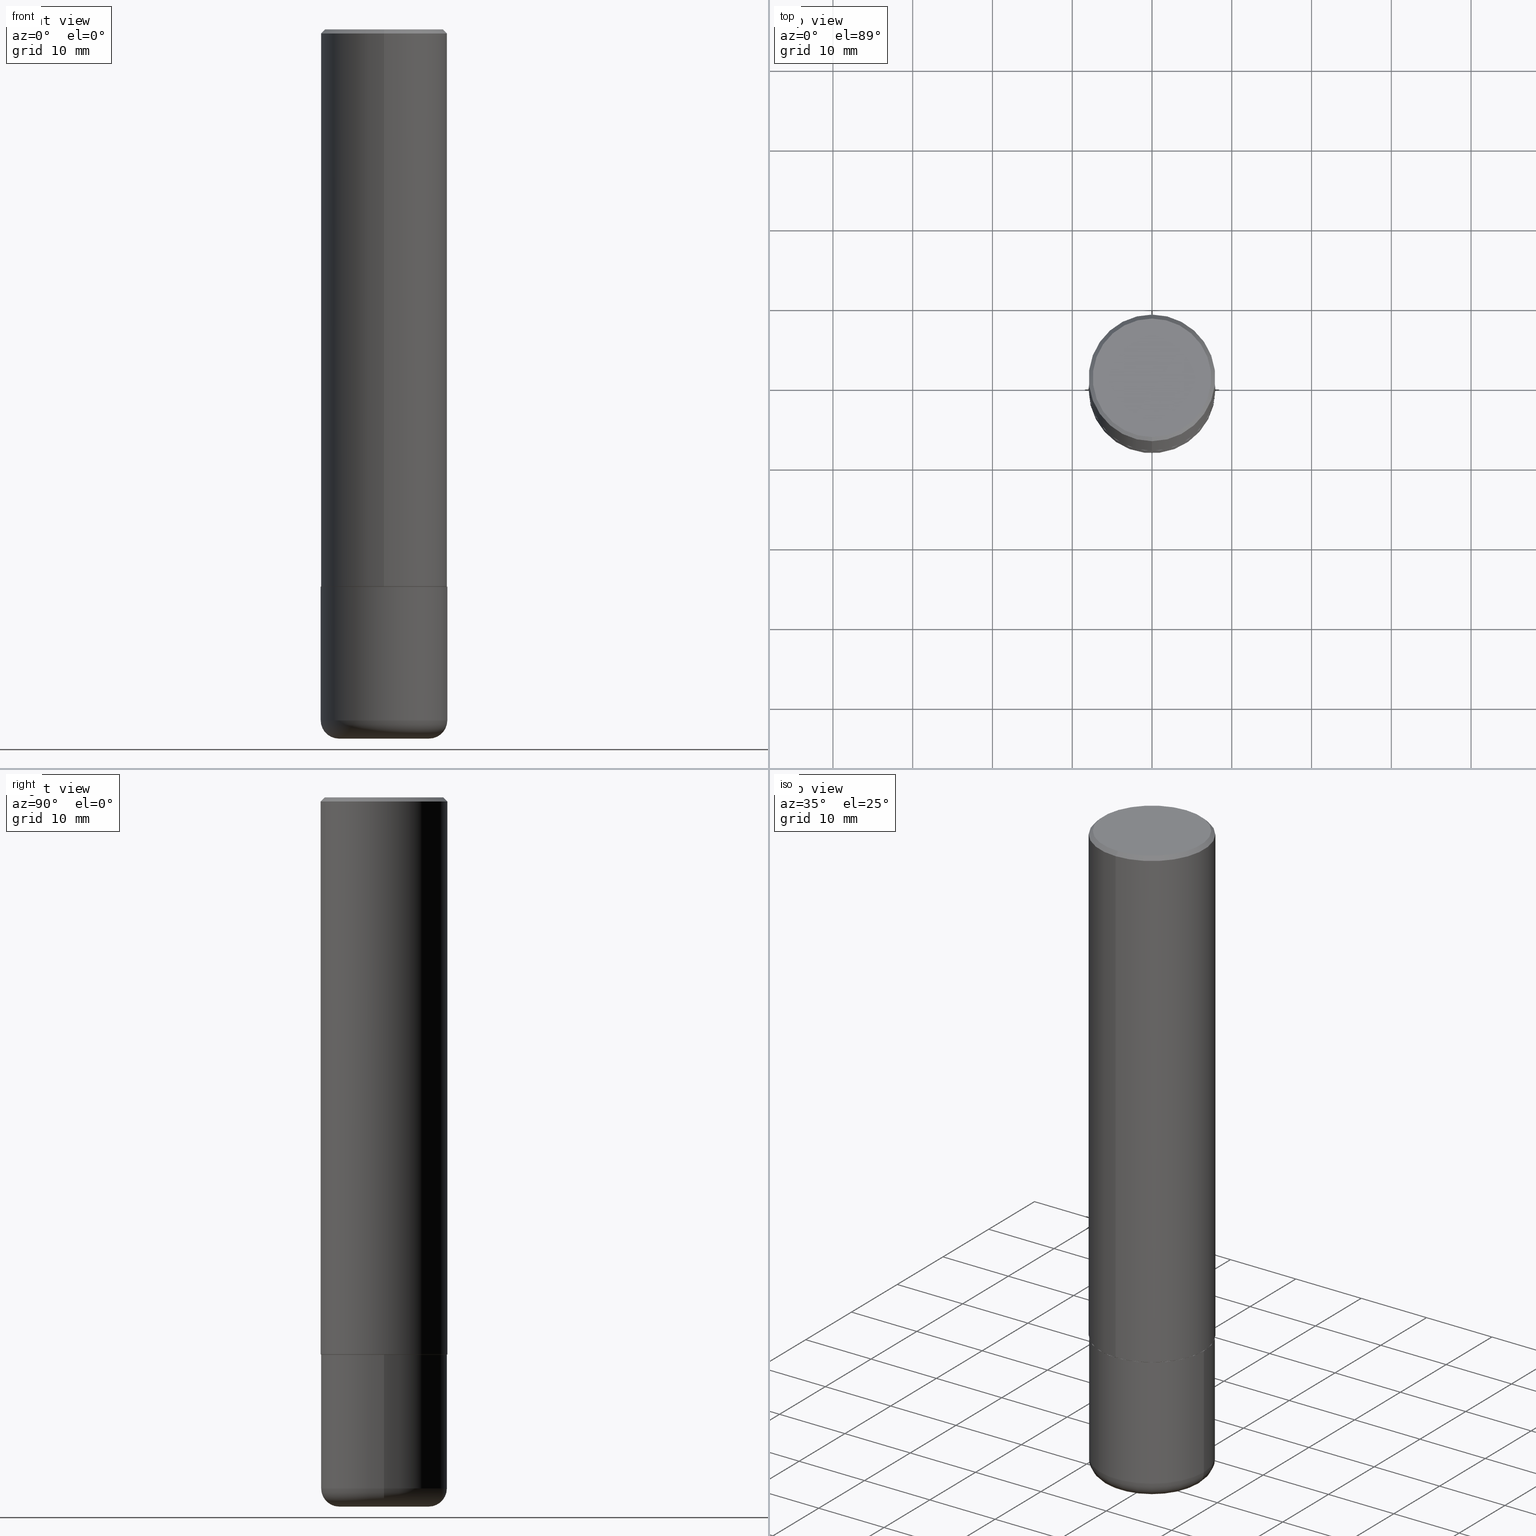
[diagram: canonical four-view strip — front | top / right | iso, engineering-drawing reading convention]
A machine part, canonical four-view strip (front | top / right | iso — engineering-drawing reading convention). The complete STEP part file that produces these views, byte-faithful:
ISO-10303-21;
HEADER;
FILE_DESCRIPTION (( 'STEP AP203' ),
    '1' );
FILE_NAME ('38626.STEP',
    '2024-03-03T09:10:07',
    ( '' ),
    ( '' ),
    'SwSTEP 2.0',
    'SolidWorks 2023',
    '' );
FILE_SCHEMA (( 'CONFIG_CONTROL_DESIGN' ));
ENDSEC;

DATA;
#1 = ADVANCED_FACE ( 'NONE', ( #261 ), #129, .T. ) ;
#2 = CYLINDRICAL_SURFACE ( 'NONE', #130, 0.3125000000000001665 ) ;
#3 = PRODUCT_RELATED_PRODUCT_CATEGORY ( 'detail', '', ( #117 ) ) ;
#4 = VERTEX_POINT ( 'NONE', #186 ) ;
#5 = EDGE_CURVE ( 'NONE', #210, #52, #221, .T. ) ;
#6 = DIRECTION ( 'NONE',  ( -2.445468806185136877E-29, 3.491481338843145188E-15, 1.000000000000000000 ) ) ;
#7 = AXIS2_PLACEMENT_3D ( 'NONE', #414, #28, #351 ) ;
#8 = DATE_AND_TIME ( #10, #123 ) ;
#9 = DIRECTION ( 'NONE',  ( -2.445171408279705303E-29, 3.491907229570560770E-15, 1.000000000000000000 ) ) ;
#10 = CALENDAR_DATE ( 2024, 3, 3 ) ;
#11 = CARTESIAN_POINT ( 'NONE',  ( -2.182175836776959136E-15, -0.3125000000000001665, 1.091221009240800684E-15 ) ) ;
#12 = CARTESIAN_POINT ( 'NONE',  ( 2.112346210000096627E-15, 0.2925000000000002043, -1.145045153824532785E-15 ) ) ;
#13 = EDGE_CURVE ( 'NONE', #24, #306, #40, .T. ) ;
#14 = EDGE_LOOP ( 'NONE', ( #341, #275 ) ) ;
#15 = PERSON_AND_ORGANIZATION_ROLE ( 'classification_officer' ) ;
#16 =( GEOMETRIC_REPRESENTATION_CONTEXT ( 3 ) GLOBAL_UNCERTAINTY_ASSIGNED_CONTEXT ( ( #50 ) ) GLOBAL_UNIT_ASSIGNED_CONTEXT ( ( #34, #157, #418 ) ) REPRESENTATION_CONTEXT ( 'NONE', 'WORKASPACE' ) );
#17 = VERTEX_POINT ( 'NONE', #153 ) ;
#18 = APPROVAL_DATE_TIME ( #8, #278 ) ;
#19 = ADVANCED_FACE ( 'NONE', ( #285 ), #349, .T. ) ;
#20 = ORIENTED_EDGE ( 'NONE', *, *, #5, .F. ) ;
#21 = EDGE_LOOP ( 'NONE', ( #203, #313 ) ) ;
#22 = CIRCLE ( 'NONE', #47, 0.3125000000000002776 ) ;
#23 = VECTOR ( 'NONE', #26, 39.37007874015748143 ) ;
#24 = VERTEX_POINT ( 'NONE', #25 ) ;
#25 = CARTESIAN_POINT ( 'NONE',  ( 0.3125000000000000000, -1.178374951859560978E-14, -2.750000000000000000 ) ) ;
#26 = DIRECTION ( 'NONE',  ( -4.937700262165728178E-15, -0.7071067811867141062, 0.7071067811863809283 ) ) ;
#27 = DIRECTION ( 'NONE',  ( -2.445468806185136597E-29, 3.491481338843145583E-15, 1.000000000000000000 ) ) ;
#28 = DIRECTION ( 'NONE',  ( 2.445171408279705022E-29, -3.491907229570560770E-15, -1.000000000000000000 ) ) ;
#29 = CARTESIAN_POINT ( 'NONE',  ( 4.890342816559434953E-31, -6.983814459141154574E-17, -0.02000000000000009756 ) ) ;
#30 = ADVANCED_FACE ( 'NONE', ( #92 ), #58, .T. ) ;
#31 = CARTESIAN_POINT ( 'NONE',  ( 2.213340621892779126E-15, 0.3114999999999903957, -2.750000000000000888 ) ) ;
#32 = DIRECTION ( 'NONE',  ( 1.000000000000000000, 0.000000000000000000, 0.000000000000000000 ) ) ;
#33 = LINE ( 'NONE', #11, #141 ) ;
#34 =( CONVERSION_BASED_UNIT ( 'INCH', #288 ) LENGTH_UNIT ( ) NAMED_UNIT ( #39 ) );
#35 = CARTESIAN_POINT ( 'NONE',  ( -2.075300644325888676E-15, -0.2925000000000002043, 8.977205754742468235E-16 ) ) ;
#36 = DIRECTION ( 'NONE',  ( 1.000000000000000000, -6.982962677686273810E-15, 0.000000000000000000 ) ) ;
#37 = CARTESIAN_POINT ( 'NONE',  ( 2.182175836776959136E-15, 0.3125000000000000000, -0.02000000000000119044 ) ) ;
#38 = DIRECTION ( 'NONE',  ( -6.982962677686266711E-15, -1.000000000000000000, 3.496765431890256131E-15 ) ) ;
#39 = DIMENSIONAL_EXPONENTS ( 1.000000000000000000, 0.000000000000000000, 0.000000000000000000, 0.000000000000000000, 0.000000000000000000, 0.000000000000000000, 0.000000000000000000 ) ;
#40 = CIRCLE ( 'NONE', #271, 0.3125000000000000000 ) ;
#41 = ORIENTED_EDGE ( 'NONE', *, *, #5, .T. ) ;
#42 = VECTOR ( 'NONE', #274, 39.37007874015748143 ) ;
#43 = ORIENTED_EDGE ( 'NONE', *, *, #292, .T. ) ;
#44 = COORDINATED_UNIVERSAL_TIME_OFFSET ( 5, 0, .BEHIND. ) ;
#45 = ORIENTED_EDGE ( 'NONE', *, *, #179, .F. ) ;
#46 = EDGE_CURVE ( 'NONE', #248, #250, #254, .T. ) ;
#47 = AXIS2_PLACEMENT_3D ( 'NONE', #415, #62, #122 ) ;
#48 = LOCAL_TIME ( 4, 10, 7.000000000000000000, #209 ) ;
#49 = EDGE_LOOP ( 'NONE', ( #45, #280, #243, #180 ) ) ;
#50 = UNCERTAINTY_MEASURE_WITH_UNIT (LENGTH_MEASURE( 1.000000000000000082E-05 ), #34, 'distance_accuracy_value', 'NONE');
#51 = ORIENTED_EDGE ( 'NONE', *, *, #169, .T. ) ;
#52 = VERTEX_POINT ( 'NONE', #295 ) ;
#53 = AXIS2_PLACEMENT_3D ( 'NONE', #358, #27, #384 ) ;
#54 = DIRECTION ( 'NONE',  ( 7.105427357601001859E-15, 1.000000000000000000, -3.491481338843145583E-15 ) ) ;
#55 =( LENGTH_UNIT ( ) NAMED_UNIT ( * ) SI_UNIT ( $, .METRE. ) );
#56 = DIRECTION ( 'NONE',  ( -2.445171408279705303E-29, 3.491907229570560770E-15, 1.000000000000000000 ) ) ;
#57 = LINE ( 'NONE', #359, #323 ) ;
#58 = PLANE ( 'NONE',  #322 ) ;
#59 = CARTESIAN_POINT ( 'NONE',  ( -0.2225000000000000033, -1.016236620754480236E-14, -3.499999999999999112 ) ) ;
#60 = CONICAL_SURFACE ( 'NONE', #76, 0.3125000000000000555, 0.7853981633974452814 ) ;
#61 = CIRCLE ( 'NONE', #118, 0.08999999999999964972 ) ;
#62 = DIRECTION ( 'NONE',  ( -2.445171408279705303E-29, 3.491907229570560770E-15, 1.000000000000000000 ) ) ;
#63 = DIRECTION ( 'NONE',  ( 0.000000000000000000, 0.000000000000000000, 1.000000000000000000 ) ) ;
#64 = DIRECTION ( 'NONE',  ( 5.024295867789263036E-15, 0.7071067811867189912, 0.7071067811863760433 ) ) ;
#65 = CARTESIAN_POINT ( 'NONE',  ( 6.721776201360911132E-29, -9.599252974089470899E-15, -2.749000000000000110 ) ) ;
#66 = ADVANCED_FACE ( 'NONE', ( #289 ), #247, .T. ) ;
#67 = DIRECTION ( 'NONE',  ( -6.982962677686265922E-15, -1.000000000000000000, 3.507991003100177457E-15 ) ) ;
#68 = CARTESIAN_POINT ( 'NONE',  ( 8.339048629091315302E-29, -1.190595136545512608E-14, -3.410000000000000142 ) ) ;
#69 = PRODUCT_DEFINITION_FORMATION_WITH_SPECIFIED_SOURCE ( 'ANY', '', #117, .NOT_KNOWN. ) ;
#70 = PERSON_AND_ORGANIZATION ( #242, #132 ) ;
#71 = DIRECTION ( 'NONE',  ( -2.445468806185136597E-29, 3.491481338843145583E-15, 1.000000000000000000 ) ) ;
#72 = EDGE_CURVE ( 'NONE', #277, #205, #22, .T. ) ;
#73 = DIRECTION ( 'NONE',  ( -2.445171408279705303E-29, 3.491907229570560770E-15, 1.000000000000000000 ) ) ;
#74 = ORIENTED_EDGE ( 'NONE', *, *, #142, .F. ) ;
#75 = PRODUCT_DEFINITION ( 'UNKNOWN', '', #69, #181 ) ;
#76 = AXIS2_PLACEMENT_3D ( 'NONE', #29, #293, #191 ) ;
#77 = AXIS2_PLACEMENT_3D ( 'NONE', #224, #63, #32 ) ;
#78 = ORIENTED_EDGE ( 'NONE', *, *, #307, .F. ) ;
#79 = EDGE_LOOP ( 'NONE', ( #402, #334, #41, #375 ) ) ;
#80 = ORIENTED_EDGE ( 'NONE', *, *, #292, .F. ) ;
#81 = SECURITY_CLASSIFICATION_LEVEL ( 'unclassified' ) ;
#82 = AXIS2_PLACEMENT_3D ( 'NONE', #159, #260, #93 ) ;
#83 = ORIENTED_EDGE ( 'NONE', *, *, #13, .T. ) ;
#84 = EDGE_CURVE ( 'NONE', #17, #344, #103, .T. ) ;
#85 = ORIENTED_EDGE ( 'NONE', *, *, #213, .T. ) ;
#86 = APPROVAL ( #343, 'UNSPECIFIED' ) ;
#87 = DIRECTION ( 'NONE',  ( -2.445468806185136597E-29, 3.491481338843145583E-15, 1.000000000000000000 ) ) ;
#88 = CIRCLE ( 'NONE', #196, 0.3125000000000000000 ) ;
#89 = CARTESIAN_POINT ( 'NONE',  ( 4.890342816559434953E-31, -6.983814459141154574E-17, -0.02000000000000009756 ) ) ;
#90 = DIRECTION ( 'NONE',  ( -2.445171408279705303E-29, 3.491907229570560770E-15, 1.000000000000000000 ) ) ;
#91 = CARTESIAN_POINT ( 'NONE',  ( 6.725039217009124520E-29, -9.601573681818649859E-15, -2.750000000000000000 ) ) ;
#92 = FACE_OUTER_BOUND ( 'NONE', #21, .T. ) ;
#93 = DIRECTION ( 'NONE',  ( -6.982962677686265922E-15, -1.000000000000000000, 3.507991003100177457E-15 ) ) ;
#94 = DIRECTION ( 'NONE',  ( 1.000000000000000000, -6.982962677686269077E-15, 0.000000000000000000 ) ) ;
#95 = AXIS2_PLACEMENT_3D ( 'NONE', #68, #71, #332 ) ;
#96 = VECTOR ( 'NONE', #6, 39.37007874015748143 ) ;
#97 = LINE ( 'NONE', #31, #116 ) ;
#98 = PLANE ( 'NONE',  #335 ) ;
#99 = CARTESIAN_POINT ( 'NONE',  ( 6.724221372769189582E-29, -9.602744881319041132E-15, -2.750000000000000000 ) ) ;
#100 = PERSON_AND_ORGANIZATION_ROLE ( 'creator' ) ;
#101 = CARTESIAN_POINT ( 'NONE',  ( 6.724221372769189582E-29, -9.602744881319041132E-15, -2.750000000000000000 ) ) ;
#102 = PERSON_AND_ORGANIZATION ( #242, #132 ) ;
#103 = CIRCLE ( 'NONE', #262, 0.3114999999999999991 ) ;
#104 = ADVANCED_FACE ( 'NONE', ( #321 ), #60, .T. ) ;
#105 = DIRECTION ( 'NONE',  ( -2.445171408279705022E-29, 3.491907229570560770E-15, 1.000000000000000000 ) ) ;
#106 = CIRCLE ( 'NONE', #380, 0.3125000000000000555 ) ;
#107 = ADVANCED_FACE ( 'NONE', ( #125 ), #2, .T. ) ;
#108 = ORIENTED_EDGE ( 'NONE', *, *, #245, .T. ) ;
#109 = ORIENTED_EDGE ( 'NONE', *, *, #263, .F. ) ;
#110 = LOCAL_TIME ( 4, 10, 7.000000000000000000, #44 ) ;
#111 = EDGE_LOOP ( 'NONE', ( #279, #336 ) ) ;
#112 = PERSON_AND_ORGANIZATION_ROLE ( 'creator' ) ;
#113 = EDGE_LOOP ( 'NONE', ( #109, #43, #148, #182 ) ) ;
#114 = DATE_AND_TIME ( #233, #48 ) ;
#115 = VERTEX_POINT ( 'NONE', #257 ) ;
#116 = VECTOR ( 'NONE', #64, 39.37007874015748143 ) ;
#117 = PRODUCT ( '38626', '38626', '', ( #296 ) ) ;
#118 = AXIS2_PLACEMENT_3D ( 'NONE', #401, #360, #36 ) ;
#119 = ORIENTED_EDGE ( 'NONE', *, *, #144, .T. ) ;
#120 = DIRECTION ( 'NONE',  ( -2.445171408279705303E-29, 3.491907229570560770E-15, 1.000000000000000000 ) ) ;
#121 = PLANE ( 'NONE',  #7 ) ;
#122 = DIRECTION ( 'NONE',  ( -6.982962677686265922E-15, -1.000000000000000000, 3.496765431890253764E-15 ) ) ;
#123 = LOCAL_TIME ( 4, 10, 7.000000000000000000, #229 ) ;
#124 = FACE_OUTER_BOUND ( 'NONE', #151, .T. ) ;
#125 = FACE_OUTER_BOUND ( 'NONE', #408, .T. ) ;
#126 = DIRECTION ( 'NONE',  ( -1.000000000000000000, 6.982962677686265922E-15, -4.876176775795935793E-29 ) ) ;
#127 = CARTESIAN_POINT ( 'NONE',  ( -0.2225000000000000033, -1.032499377838890215E-14, -3.410000000000000142 ) ) ;
#128 = APPLICATION_PROTOCOL_DEFINITION ( 'international standard', 'config_control_design', 1994, #342 ) ;
#129 = CYLINDRICAL_SURFACE ( 'NONE', #386, 0.3125000000000001665 ) ;
#130 = AXIS2_PLACEMENT_3D ( 'NONE', #325, #251, #317 ) ;
#131 = CARTESIAN_POINT ( 'NONE',  ( 0.3125000000000000000, -2.182175836776958347E-15, 1.523805242436230075E-29 ) ) ;
#132 = ORGANIZATION ( 'UNSPECIFIED', 'UNSPECIFIED', '' ) ;
#133 = CARTESIAN_POINT ( 'NONE',  ( 2.220446049250348185E-15, 0.3124999999999906741, -2.749000000000000998 ) ) ;
#134 = ADVANCED_FACE ( 'NONE', ( #390 ), #347, .T. ) ;
#135 = DATE_TIME_ROLE ( 'classification_date' ) ;
#136 = LINE ( 'NONE', #367, #42 ) ;
#137 = PERSON_AND_ORGANIZATION ( #242, #132 ) ;
#138 = CARTESIAN_POINT ( 'NONE',  ( 3.023754937734766130E-45, -4.318172415959271886E-31, -1.236622891751430301E-16 ) ) ;
#139 = CC_DESIGN_PERSON_AND_ORGANIZATION_ASSIGNMENT ( #70, #112, ( #69 ) ) ;
#140 = CARTESIAN_POINT ( 'NONE',  ( 8.339048629091315302E-29, -1.190595136545512608E-14, -3.410000000000000142 ) ) ;
#141 = VECTOR ( 'NONE', #270, 39.37007874015748143 ) ;
#142 = EDGE_CURVE ( 'NONE', #344, #277, #97, .T. ) ;
#143 = ORIENTED_EDGE ( 'NONE', *, *, #189, .F. ) ;
#144 = EDGE_CURVE ( 'NONE', #378, #310, #239, .T. ) ;
#145 = ORIENTED_EDGE ( 'NONE', *, *, #13, .F. ) ;
#146 = CIRCLE ( 'NONE', #183, 0.2225000000000000033 ) ;
#147 = PERSON_AND_ORGANIZATION ( #242, #132 ) ;
#148 = ORIENTED_EDGE ( 'NONE', *, *, #307, .T. ) ;
#149 = COORDINATED_UNIVERSAL_TIME_OFFSET ( 5, 0, .BEHIND. ) ;
#150 = ORIENTED_EDGE ( 'NONE', *, *, #223, .F. ) ;
#151 = EDGE_LOOP ( 'NONE', ( #316, #338, #283, #373 ) ) ;
#152 = CIRCLE ( 'NONE', #202, 0.3125000000000002776 ) ;
#153 = CARTESIAN_POINT ( 'NONE',  ( -2.175192874099204491E-15, -0.3115000000000096581, -2.749999999999998668 ) ) ;
#154 = ADVANCED_FACE ( 'NONE', ( #197 ), #163, .F. ) ;
#155 = DIRECTION ( 'NONE',  ( -2.445171408279705303E-29, 3.491907229570560770E-15, 1.000000000000000000 ) ) ;
#156 = CARTESIAN_POINT ( 'NONE',  ( 3.023754937734766130E-45, -4.318172415959271886E-31, -1.236622891751430301E-16 ) ) ;
#157 =( NAMED_UNIT ( * ) PLANE_ANGLE_UNIT ( ) SI_UNIT ( $, .RADIAN. ) );
#158 = CARTESIAN_POINT ( 'NONE',  ( 6.724221372769189582E-29, -9.602744881319041132E-15, -2.750000000000000000 ) ) ;
#159 = CARTESIAN_POINT ( 'NONE',  ( 6.724221372769189582E-29, -9.602744881319041132E-15, -2.750000000000000000 ) ) ;
#160 = ADVANCED_FACE ( 'NONE', ( #195 ), #249, .T. ) ;
#161 = CARTESIAN_POINT ( 'NONE',  ( 0.000000000000000000, 0.000000000000000000, 0.000000000000000000 ) ) ;
#162 = DIRECTION ( 'NONE',  ( 2.445171408279705303E-29, -3.491907229570560770E-15, -1.000000000000000000 ) ) ;
#163 = PLANE ( 'NONE',  #166 ) ;
#164 = CLOSED_SHELL ( 'NONE', ( #19, #294, #356, #134, #160, #30 ) ) ;
#165 = CALENDAR_DATE ( 2024, 3, 3 ) ;
#166 = AXIS2_PLACEMENT_3D ( 'NONE', #101, #105, #396 ) ;
#167 = CARTESIAN_POINT ( 'NONE',  ( 8.339048629091315302E-29, -1.190595136545512608E-14, -3.410000000000000142 ) ) ;
#168 = DIRECTION ( 'NONE',  ( -2.445468806185136597E-29, 3.491481338843145583E-15, 1.000000000000000000 ) ) ;
#169 = EDGE_CURVE ( 'NONE', #248, #52, #362, .T. ) ;
#170 = DIRECTION ( 'NONE',  ( 1.000000000000000000, -6.982962677686269077E-15, 0.000000000000000000 ) ) ;
#171 = PRODUCT_DEFINITION_SHAPE ( 'NONE', 'NONE',  #75 ) ;
#172 = AXIS2_PLACEMENT_3D ( 'NONE', #200, #168, #326 ) ;
#173 = ORIENTED_EDGE ( 'NONE', *, *, #144, .F. ) ;
#174 = DATE_AND_TIME ( #165, #110 ) ;
#175 = ORIENTED_EDGE ( 'NONE', *, *, #377, .T. ) ;
#176 = SECURITY_CLASSIFICATION ( '', '', #81 ) ;
#177 = APPROVAL_STATUS ( 'not_yet_approved' ) ;
#178 = ORIENTED_EDGE ( 'NONE', *, *, #263, .T. ) ;
#179 = EDGE_CURVE ( 'NONE', #277, #52, #136, .T. ) ;
#180 = ORIENTED_EDGE ( 'NONE', *, *, #245, .F. ) ;
#181 = DESIGN_CONTEXT ( 'detailed design', #403, 'design' ) ;
#182 = ORIENTED_EDGE ( 'NONE', *, *, #350, .F. ) ;
#183 = AXIS2_PLACEMENT_3D ( 'NONE', #357, #320, #194 ) ;
#184 = ORIENTED_EDGE ( 'NONE', *, *, #411, .F. ) ;
#185 = CARTESIAN_POINT ( 'NONE',  ( 6.725039217009124520E-29, -9.601573681818649859E-15, -2.750000000000000000 ) ) ;
#186 = CARTESIAN_POINT ( 'NONE',  ( 0.3124999999999998890, -1.408812720223208442E-14, -3.410000000000000142 ) ) ;
#187 = CARTESIAN_POINT ( 'NONE',  ( -0.3124999999999998890, -9.685505316204812997E-15, -3.410000000000000142 ) ) ;
#188 = DIRECTION ( 'NONE',  ( -6.982962677686266711E-15, -1.000000000000000000, 3.491907229570560770E-15 ) ) ;
#189 = EDGE_CURVE ( 'NONE', #115, #4, #61, .T. ) ;
#190 = LOCAL_TIME ( 4, 10, 7.000000000000000000, #244 ) ;
#191 = DIRECTION ( 'NONE',  ( 6.982962677686266711E-15, 1.000000000000000000, -3.496765431890256131E-15 ) ) ;
#192 = DIRECTION ( 'NONE',  ( -6.982962677686265922E-15, -1.000000000000000000, 3.496765431890253764E-15 ) ) ;
#193 = ORIENTED_EDGE ( 'NONE', *, *, #282, .T. ) ;
#194 = DIRECTION ( 'NONE',  ( 1.000000000000000000, -6.982962677686269077E-15, 0.000000000000000000 ) ) ;
#195 = FACE_OUTER_BOUND ( 'NONE', #383, .T. ) ;
#196 = AXIS2_PLACEMENT_3D ( 'NONE', #185, #264, #318 ) ;
#197 = FACE_OUTER_BOUND ( 'NONE', #14, .T. ) ;
#198 = APPROVAL_ROLE ( '' ) ;
#199 = CARTESIAN_POINT ( 'NONE',  ( -2.143905624303603219E-15, -0.3125000000000001665, -0.01999999999999900469 ) ) ;
#200 = CARTESIAN_POINT ( 'NONE',  ( 8.339048629091315302E-29, -1.190595136545512608E-14, -3.410000000000000142 ) ) ;
#201 = AXIS2_PLACEMENT_3D ( 'NONE', #156, #225, #188 ) ;
#202 = AXIS2_PLACEMENT_3D ( 'NONE', #65, #258, #192 ) ;
#203 = ORIENTED_EDGE ( 'NONE', *, *, #314, .F. ) ;
#204 = APPLICATION_PROTOCOL_DEFINITION ( 'international standard', 'config_control_design', 1994, #403 ) ;
#205 = VERTEX_POINT ( 'NONE', #303 ) ;
#206 = PERSON_AND_ORGANIZATION ( #242, #132 ) ;
#207 = ORIENTED_EDGE ( 'NONE', *, *, #211, .T. ) ;
#208 = CC_DESIGN_DATE_AND_TIME_ASSIGNMENT ( #407, #135, ( #176 ) ) ;
#209 = COORDINATED_UNIVERSAL_TIME_OFFSET ( 5, 0, .BEHIND. ) ;
#210 = VERTEX_POINT ( 'NONE', #199 ) ;
#211 = EDGE_CURVE ( 'NONE', #344, #17, #276, .T. ) ;
#212 = ORIENTED_EDGE ( 'NONE', *, *, #382, .T. ) ;
#213 = EDGE_CURVE ( 'NONE', #4, #310, #355, .T. ) ;
#214 = DIRECTION ( 'NONE',  ( -6.982962677686265922E-15, -1.000000000000000000, 3.507991003100177457E-15 ) ) ;
#215 = AXIS2_PLACEMENT_3D ( 'NONE', #89, #162, #216 ) ;
#216 = DIRECTION ( 'NONE',  ( 6.982962677686266711E-15, 1.000000000000000000, -3.496765431890256131E-15 ) ) ;
#217 = CARTESIAN_POINT ( 'NONE',  ( 0.000000000000000000, 0.000000000000000000, 0.000000000000000000 ) ) ;
#218 = DIRECTION ( 'NONE',  ( -6.982962677686266711E-15, -1.000000000000000000, 3.496765431890256131E-15 ) ) ;
#219 = CARTESIAN_POINT ( 'NONE',  ( 1.456070253248337008E-28, -3.625606728355578380E-15, -3.499999999999999112 ) ) ;
#220 = CC_DESIGN_PERSON_AND_ORGANIZATION_ASSIGNMENT ( #266, #15, ( #176 ) ) ;
#221 = CIRCLE ( 'NONE', #290, 0.3125000000000000555 ) ;
#222 = AXIS2_PLACEMENT_3D ( 'NONE', #399, #235, #365 ) ;
#223 = EDGE_CURVE ( 'NONE', #205, #210, #33, .T. ) ;
#224 = CARTESIAN_POINT ( 'NONE',  ( 0.000000000000000000, 0.000000000000000000, 0.000000000000000000 ) ) ;
#225 = DIRECTION ( 'NONE',  ( -2.445171408279705303E-29, 3.491907229570560770E-15, 1.000000000000000000 ) ) ;
#226 = EDGE_CURVE ( 'NONE', #250, #248, #369, .T. ) ;
#227 = FACE_OUTER_BOUND ( 'NONE', #406, .T. ) ;
#228 = DIRECTION ( 'NONE',  ( -2.445468806185136597E-29, 3.491481338843145583E-15, 1.000000000000000000 ) ) ;
#229 = COORDINATED_UNIVERSAL_TIME_OFFSET ( 5, 0, .BEHIND. ) ;
#230 = CC_DESIGN_PERSON_AND_ORGANIZATION_ASSIGNMENT ( #102, #100, ( #75 ) ) ;
#231 = CARTESIAN_POINT ( 'NONE',  ( -0.3125000000000000000, -8.533316474386574888E-15, -2.750000000000000000 ) ) ;
#232 = AXIS2_PLACEMENT_3D ( 'NONE', #158, #155, #214 ) ;
#233 = CALENDAR_DATE ( 2024, 3, 3 ) ;
#234 = APPROVAL_PERSON_ORGANIZATION ( #147, #413, #272 ) ;
#235 = DIRECTION ( 'NONE',  ( -2.445468806185136597E-29, 3.491481338843145583E-15, 1.000000000000000000 ) ) ;
#236 = DIRECTION ( 'NONE',  ( 4.937700262164532265E-15, 0.7071067811865429098, -0.7071067811865521247 ) ) ;
#237 = ORIENTED_EDGE ( 'NONE', *, *, #350, .T. ) ;
#238 = CC_DESIGN_DATE_AND_TIME_ASSIGNMENT ( #308, #311, ( #75 ) ) ;
#239 = CIRCLE ( 'NONE', #299, 0.08999999999999964972 ) ;
#240 = CONICAL_SURFACE ( 'NONE', #215, 0.3125000000000000555, 0.7853981633974452814 ) ;
#241 = EDGE_LOOP ( 'NONE', ( #312, #119, #410, #143 ) ) ;
#242 = PERSON ( 'UNSPECIFIED', 'UNSPECIFIED', 'UNSPECIFIED', ('UNSPECIFIED'), ('UNSPECIFIED'), ('UNSPECIFIED') ) ;
#243 = ORIENTED_EDGE ( 'NONE', *, *, #223, .T. ) ;
#244 = COORDINATED_UNIVERSAL_TIME_OFFSET ( 5, 0, .BEHIND. ) ;
#245 = EDGE_CURVE ( 'NONE', #52, #210, #106, .T. ) ;
#246 = ORIENTED_EDGE ( 'NONE', *, *, #189, .T. ) ;
#247 = CONICAL_SURFACE ( 'NONE', #232, 0.3114999999999999991, 0.7853981633976873100 ) ;
#248 = VERTEX_POINT ( 'NONE', #12 ) ;
#249 = TOROIDAL_SURFACE ( 'NONE', #305, 0.2225000000000000033, 0.08999999999999964972 ) ;
#250 = VERTEX_POINT ( 'NONE', #35 ) ;
#251 = DIRECTION ( 'NONE',  ( -2.445171408279705303E-29, 3.491907229570560770E-15, 1.000000000000000000 ) ) ;
#252 = LINE ( 'NONE', #256, #23 ) ;
#253 = DIRECTION ( 'NONE',  ( 1.000000000000000000, -6.982962677686266711E-15, 4.876176775795936353E-29 ) ) ;
#254 = CIRCLE ( 'NONE', #201, 0.2925000000000002043 ) ;
#255 = LOCAL_TIME ( 4, 10, 7.000000000000000000, #149 ) ;
#256 = CARTESIAN_POINT ( 'NONE',  ( -2.175192874099204491E-15, -0.3115000000000096581, -2.749999999999998668 ) ) ;
#257 = CARTESIAN_POINT ( 'NONE',  ( 0.2225000000000000033, -1.377389388173620116E-14, -3.499999999999999112 ) ) ;
#258 = DIRECTION ( 'NONE',  ( -2.445171408279705303E-29, 3.491907229570560770E-15, 1.000000000000000000 ) ) ;
#259 = DIRECTION ( 'NONE',  ( -1.000000000000000000, 7.105427357600996337E-15, 0.000000000000000000 ) ) ;
#260 = DIRECTION ( 'NONE',  ( -2.445171408279705303E-29, 3.491907229570560770E-15, 1.000000000000000000 ) ) ;
#261 = FACE_OUTER_BOUND ( 'NONE', #49, .T. ) ;
#262 = AXIS2_PLACEMENT_3D ( 'NONE', #353, #120, #417 ) ;
#263 = EDGE_CURVE ( 'NONE', #310, #306, #297, .T. ) ;
#264 = DIRECTION ( 'NONE',  ( -2.445468806185136597E-29, 3.491481338843145583E-15, 1.000000000000000000 ) ) ;
#265 = DIRECTION ( 'NONE',  ( -2.445171408279705303E-29, 3.491907229570560770E-15, 1.000000000000000000 ) ) ;
#266 = PERSON_AND_ORGANIZATION ( #242, #132 ) ;
#267 = FACE_OUTER_BOUND ( 'NONE', #241, .T. ) ;
#268 = EDGE_LOOP ( 'NONE', ( #83, #237 ) ) ;
#269 = APPROVAL_DATE_TIME ( #174, #86 ) ;
#270 = DIRECTION ( 'NONE',  ( -2.445171408279705303E-29, 3.491907229570560770E-15, 1.000000000000000000 ) ) ;
#271 = AXIS2_PLACEMENT_3D ( 'NONE', #287, #393, #94 ) ;
#272 = APPROVAL_ROLE ( '' ) ;
#273 = AXIS2_PLACEMENT_3D ( 'NONE', #138, #9, #333 ) ;
#274 = DIRECTION ( 'NONE',  ( -2.445171408279705303E-29, 3.491907229570560770E-15, 1.000000000000000000 ) ) ;
#275 = ORIENTED_EDGE ( 'NONE', *, *, #211, .F. ) ;
#276 = CIRCLE ( 'NONE', #387, 0.3114999999999999991 ) ;
#277 = VERTEX_POINT ( 'NONE', #133 ) ;
#278 = APPROVAL ( #374, 'UNSPECIFIED' ) ;
#279 = ORIENTED_EDGE ( 'NONE', *, *, #46, .T. ) ;
#280 = ORIENTED_EDGE ( 'NONE', *, *, #72, .T. ) ;
#281 = VECTOR ( 'NONE', #395, 39.37007874015748143 ) ;
#282 = EDGE_CURVE ( 'NONE', #378, #115, #409, .T. ) ;
#283 = ORIENTED_EDGE ( 'NONE', *, *, #377, .F. ) ;
#284 = TOROIDAL_SURFACE ( 'NONE', #95, 0.2225000000000000033, 0.08999999999999964972 ) ;
#285 = FACE_OUTER_BOUND ( 'NONE', #405, .T. ) ;
#286 = FACE_OUTER_BOUND ( 'NONE', #111, .T. ) ;
#287 = CARTESIAN_POINT ( 'NONE',  ( 6.725039217009124520E-29, -9.601573681818649859E-15, -2.750000000000000000 ) ) ;
#288 = LENGTH_MEASURE_WITH_UNIT ( LENGTH_MEASURE( 0.02539999999999999897 ), #55 );
#289 = FACE_OUTER_BOUND ( 'NONE', #381, .T. ) ;
#290 = AXIS2_PLACEMENT_3D ( 'NONE', #319, #90, #218 ) ;
#291 = CC_DESIGN_APPROVAL ( #413, ( #176 ) ) ;
#292 = EDGE_CURVE ( 'NONE', #310, #4, #394, .T. ) ;
#293 = DIRECTION ( 'NONE',  ( 2.445171408279705303E-29, -3.491907229570560770E-15, -1.000000000000000000 ) ) ;
#294 = ADVANCED_FACE ( 'NONE', ( #267 ), #284, .T. ) ;
#295 = CARTESIAN_POINT ( 'NONE',  ( 2.182175836776959136E-15, 0.3125000000000000000, -0.02000000000000119044 ) ) ;
#296 = MECHANICAL_CONTEXT ( 'NONE', #342, 'mechanical' ) ;
#297 = LINE ( 'NONE', #304, #96 ) ;
#298 = CC_DESIGN_PERSON_AND_ORGANIZATION_ASSIGNMENT ( #137, #361, ( #69 ) ) ;
#299 = AXIS2_PLACEMENT_3D ( 'NONE', #127, #54, #259 ) ;
#300 = APPROVAL_PERSON_ORGANIZATION ( #337, #86, #330 ) ;
#301 = CALENDAR_DATE ( 2024, 3, 3 ) ;
#302 = DIRECTION ( 'NONE',  ( -2.445468806185136597E-29, 3.491481338843145583E-15, 1.000000000000000000 ) ) ;
#303 = CARTESIAN_POINT ( 'NONE',  ( -2.182175836776892872E-15, -0.3125000000000099365, -2.748999999999999222 ) ) ;
#304 = CARTESIAN_POINT ( 'NONE',  ( -0.3125000000000000000, 2.220446049250313081E-15, -1.537167215704658232E-29 ) ) ;
#305 = AXIS2_PLACEMENT_3D ( 'NONE', #140, #228, #331 ) ;
#306 = VERTEX_POINT ( 'NONE', #231 ) ;
#307 = EDGE_CURVE ( 'NONE', #4, #24, #389, .T. ) ;
#308 = DATE_AND_TIME ( #301, #255 ) ;
#309 = APPROVAL_PERSON_ORGANIZATION ( #206, #278, #198 ) ;
#310 = VERTEX_POINT ( 'NONE', #187 ) ;
#311 = DATE_TIME_ROLE ( 'creation_date' ) ;
#312 = ORIENTED_EDGE ( 'NONE', *, *, #314, .T. ) ;
#313 = ORIENTED_EDGE ( 'NONE', *, *, #282, .F. ) ;
#314 = EDGE_CURVE ( 'NONE', #115, #378, #146, .T. ) ;
#315 = VECTOR ( 'NONE', #236, 39.37007874015748143 ) ;
#316 = ORIENTED_EDGE ( 'NONE', *, *, #84, .T. ) ;
#317 = DIRECTION ( 'NONE',  ( -6.982962677686265133E-15, -1.000000000000000000, 3.491907229570560376E-15 ) ) ;
#318 = DIRECTION ( 'NONE',  ( 1.000000000000000000, -6.982962677686269077E-15, 0.000000000000000000 ) ) ;
#319 = CARTESIAN_POINT ( 'NONE',  ( 4.890342816559434953E-31, -6.983814459141154574E-17, -0.02000000000000009756 ) ) ;
#320 = DIRECTION ( 'NONE',  ( -2.445468806185136597E-29, 3.491481338843145583E-15, 1.000000000000000000 ) ) ;
#321 = FACE_OUTER_BOUND ( 'NONE', #79, .T. ) ;
#322 = AXIS2_PLACEMENT_3D ( 'NONE', #219, #412, #352 ) ;
#323 = VECTOR ( 'NONE', #324, 39.37007874015748143 ) ;
#324 = DIRECTION ( 'NONE',  ( -4.851104656540949287E-15, -0.7071067811865477948, -0.7071067811865472397 ) ) ;
#325 = CARTESIAN_POINT ( 'NONE',  ( 0.000000000000000000, 0.000000000000000000, 0.000000000000000000 ) ) ;
#326 = DIRECTION ( 'NONE',  ( 1.000000000000000000, -6.982962677686269077E-15, 0.000000000000000000 ) ) ;
#327 = CARTESIAN_POINT ( 'NONE',  ( 4.890342816559434953E-31, -6.983814459141154574E-17, -0.02000000000000009756 ) ) ;
#328 = CLOSED_SHELL ( 'NONE', ( #370, #107, #104, #398, #1, #66, #154, #348 ) ) ;
#329 = CONICAL_SURFACE ( 'NONE', #82, 0.3114999999999999991, 0.7853981633976873100 ) ;
#330 = APPROVAL_ROLE ( '' ) ;
#331 = DIRECTION ( 'NONE',  ( 1.000000000000000000, -6.982962677686264344E-15, 4.883557194083111780E-29 ) ) ;
#332 = DIRECTION ( 'NONE',  ( 1.000000000000000000, -6.982962677686264344E-15, 4.883557194083111780E-29 ) ) ;
#333 = DIRECTION ( 'NONE',  ( -6.982962677686266711E-15, -1.000000000000000000, 3.491907229570560770E-15 ) ) ;
#334 = ORIENTED_EDGE ( 'NONE', *, *, #411, .T. ) ;
#335 = AXIS2_PLACEMENT_3D ( 'NONE', #91, #416, #126 ) ;
#336 = ORIENTED_EDGE ( 'NONE', *, *, #226, .T. ) ;
#337 = PERSON_AND_ORGANIZATION ( #242, #132 ) ;
#338 = ORIENTED_EDGE ( 'NONE', *, *, #142, .T. ) ;
#339 = SHAPE_DEFINITION_REPRESENTATION ( #171, #371 ) ;
#340 = CC_DESIGN_SECURITY_CLASSIFICATION ( #176, ( #69 ) ) ;
#341 = ORIENTED_EDGE ( 'NONE', *, *, #84, .F. ) ;
#342 = APPLICATION_CONTEXT ( 'configuration controlled 3d designs of mechanical parts and assemblies' ) ;
#343 = APPROVAL_STATUS ( 'not_yet_approved' ) ;
#344 = VERTEX_POINT ( 'NONE', #385 ) ;
#345 = ORIENTED_EDGE ( 'NONE', *, *, #72, .F. ) ;
#346 = CC_DESIGN_APPROVAL ( #86, ( #75 ) ) ;
#347 = CYLINDRICAL_SURFACE ( 'NONE', #354, 0.3125000000000000000 ) ;
#348 = ADVANCED_FACE ( 'NONE', ( #286 ), #121, .F. ) ;
#349 = CYLINDRICAL_SURFACE ( 'NONE', #53, 0.3125000000000000000 ) ;
#350 = EDGE_CURVE ( 'NONE', #306, #24, #88, .T. ) ;
#351 = DIRECTION ( 'NONE',  ( 6.982962677686265922E-15, 1.000000000000000000, -3.491907229570560770E-15 ) ) ;
#352 = DIRECTION ( 'NONE',  ( -1.000000000000000000, 6.982962677686265922E-15, -4.876176775795935793E-29 ) ) ;
#353 = CARTESIAN_POINT ( 'NONE',  ( 6.724221372769189582E-29, -9.602744881319041132E-15, -2.750000000000000000 ) ) ;
#354 = AXIS2_PLACEMENT_3D ( 'NONE', #217, #87, #253 ) ;
#355 = CIRCLE ( 'NONE', #172, 0.3125000000000000000 ) ;
#356 = ADVANCED_FACE ( 'NONE', ( #391 ), #98, .F. ) ;
#357 = CARTESIAN_POINT ( 'NONE',  ( 8.559140821647976968E-29, -1.222018468595100619E-14, -3.499999999999999112 ) ) ;
#358 = CARTESIAN_POINT ( 'NONE',  ( 0.000000000000000000, 0.000000000000000000, 0.000000000000000000 ) ) ;
#359 = CARTESIAN_POINT ( 'NONE',  ( -2.143905624303603219E-15, -0.3125000000000001665, -0.01999999999999900469 ) ) ;
#360 = DIRECTION ( 'NONE',  ( -6.982962677686266711E-15, -1.000000000000000000, 3.491481338843145583E-15 ) ) ;
#361 = PERSON_AND_ORGANIZATION_ROLE ( 'design_supplier' ) ;
#362 = LINE ( 'NONE', #37, #315 ) ;
#363 = CC_DESIGN_APPROVAL ( #278, ( #69 ) ) ;
#364 = PERSON_AND_ORGANIZATION_ROLE ( 'design_owner' ) ;
#365 = DIRECTION ( 'NONE',  ( 1.000000000000000000, -6.982962677686269077E-15, 0.000000000000000000 ) ) ;
#366 = CC_DESIGN_PERSON_AND_ORGANIZATION_ASSIGNMENT ( #379, #364, ( #117 ) ) ;
#367 = CARTESIAN_POINT ( 'NONE',  ( 2.220446049250313475E-15, 0.3125000000000001665, -1.091221009240800684E-15 ) ) ;
#368 = ORIENTED_EDGE ( 'NONE', *, *, #179, .T. ) ;
#369 = CIRCLE ( 'NONE', #273, 0.2925000000000002043 ) ;
#370 = ADVANCED_FACE ( 'NONE', ( #124 ), #329, .T. ) ;
#371 = ADVANCED_BREP_SHAPE_REPRESENTATION ( '38626', ( #372, #376, #77 ), #16 ) ;
#372 = MANIFOLD_SOLID_BREP ( 'Body-Move/Copy2[1]', #164 ) ;
#373 = ORIENTED_EDGE ( 'NONE', *, *, #382, .F. ) ;
#374 = APPROVAL_STATUS ( 'not_yet_approved' ) ;
#375 = ORIENTED_EDGE ( 'NONE', *, *, #169, .F. ) ;
#376 = MANIFOLD_SOLID_BREP ( 'Body-Move/Copy2[2]', #328 ) ;
#377 = EDGE_CURVE ( 'NONE', #205, #277, #152, .T. ) ;
#378 = VERTEX_POINT ( 'NONE', #59 ) ;
#379 = PERSON_AND_ORGANIZATION ( #242, #132 ) ;
#380 = AXIS2_PLACEMENT_3D ( 'NONE', #327, #265, #38 ) ;
#381 = EDGE_LOOP ( 'NONE', ( #74, #207, #212, #345 ) ) ;
#382 = EDGE_CURVE ( 'NONE', #17, #205, #252, .T. ) ;
#383 = EDGE_LOOP ( 'NONE', ( #173, #193, #246, #80 ) ) ;
#384 = DIRECTION ( 'NONE',  ( 1.000000000000000000, -6.982962677686266711E-15, 4.876176775795936353E-29 ) ) ;
#385 = CARTESIAN_POINT ( 'NONE',  ( 2.216893335571580419E-15, 0.3114999999999903957, -2.750000000000000888 ) ) ;
#386 = AXIS2_PLACEMENT_3D ( 'NONE', #161, #56, #388 ) ;
#387 = AXIS2_PLACEMENT_3D ( 'NONE', #99, #73, #67 ) ;
#388 = DIRECTION ( 'NONE',  ( -6.982962677686265133E-15, -1.000000000000000000, 3.491907229570560376E-15 ) ) ;
#389 = LINE ( 'NONE', #131, #281 ) ;
#390 = FACE_OUTER_BOUND ( 'NONE', #113, .T. ) ;
#391 = FACE_OUTER_BOUND ( 'NONE', #268, .T. ) ;
#392 = ORIENTED_EDGE ( 'NONE', *, *, #46, .F. ) ;
#393 = DIRECTION ( 'NONE',  ( -2.445468806185136597E-29, 3.491481338843145583E-15, 1.000000000000000000 ) ) ;
#394 = CIRCLE ( 'NONE', #404, 0.3125000000000000000 ) ;
#395 = DIRECTION ( 'NONE',  ( -2.445468806185136877E-29, 3.491481338843145188E-15, 1.000000000000000000 ) ) ;
#396 = DIRECTION ( 'NONE',  ( -6.982962677686265922E-15, -1.000000000000000000, 3.491907229570560770E-15 ) ) ;
#397 = APPROVAL_DATE_TIME ( #114, #413 ) ;
#398 = ADVANCED_FACE ( 'NONE', ( #227 ), #240, .T. ) ;
#399 = CARTESIAN_POINT ( 'NONE',  ( 8.559140821647976968E-29, -1.222018468595100619E-14, -3.499999999999999112 ) ) ;
#400 = CALENDAR_DATE ( 2024, 3, 3 ) ;
#401 = CARTESIAN_POINT ( 'NONE',  ( 0.2225000000000000033, -1.345966056124032105E-14, -3.410000000000000142 ) ) ;
#402 = ORIENTED_EDGE ( 'NONE', *, *, #226, .F. ) ;
#403 = APPLICATION_CONTEXT ( 'configuration controlled 3d designs of mechanical parts and assemblies' ) ;
#404 = AXIS2_PLACEMENT_3D ( 'NONE', #167, #302, #170 ) ;
#405 = EDGE_LOOP ( 'NONE', ( #85, #178, #145, #78 ) ) ;
#406 = EDGE_LOOP ( 'NONE', ( #184, #392, #51, #108 ) ) ;
#407 = DATE_AND_TIME ( #400, #190 ) ;
#408 = EDGE_LOOP ( 'NONE', ( #175, #368, #20, #150 ) ) ;
#409 = CIRCLE ( 'NONE', #222, 0.2225000000000000033 ) ;
#410 = ORIENTED_EDGE ( 'NONE', *, *, #213, .F. ) ;
#411 = EDGE_CURVE ( 'NONE', #250, #210, #57, .T. ) ;
#412 = DIRECTION ( 'NONE',  ( 2.438088387897960049E-29, -3.491481338843145188E-15, -1.000000000000000000 ) ) ;
#413 = APPROVAL ( #177, 'UNSPECIFIED' ) ;
#414 = CARTESIAN_POINT ( 'NONE',  ( 2.042516583223234512E-15, 0.2925000000000002043, -1.083214009236961245E-15 ) ) ;
#415 = CARTESIAN_POINT ( 'NONE',  ( 6.721776201360911132E-29, -9.599252974089470899E-15, -2.749000000000000110 ) ) ;
#416 = DIRECTION ( 'NONE',  ( 2.438088387897960049E-29, -3.491481338843145188E-15, -1.000000000000000000 ) ) ;
#417 = DIRECTION ( 'NONE',  ( -6.982962677686265922E-15, -1.000000000000000000, 3.507991003100177457E-15 ) ) ;
#418 =( NAMED_UNIT ( * ) SI_UNIT ( $, .STERADIAN. ) SOLID_ANGLE_UNIT ( ) );
ENDSEC;
END-ISO-10303-21;
